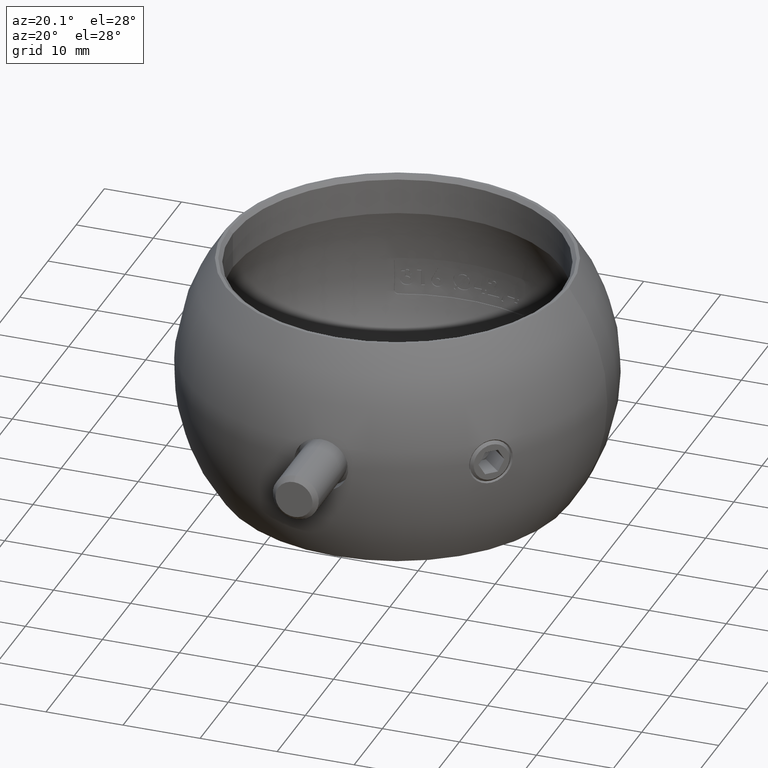
[diagram: clean part render]
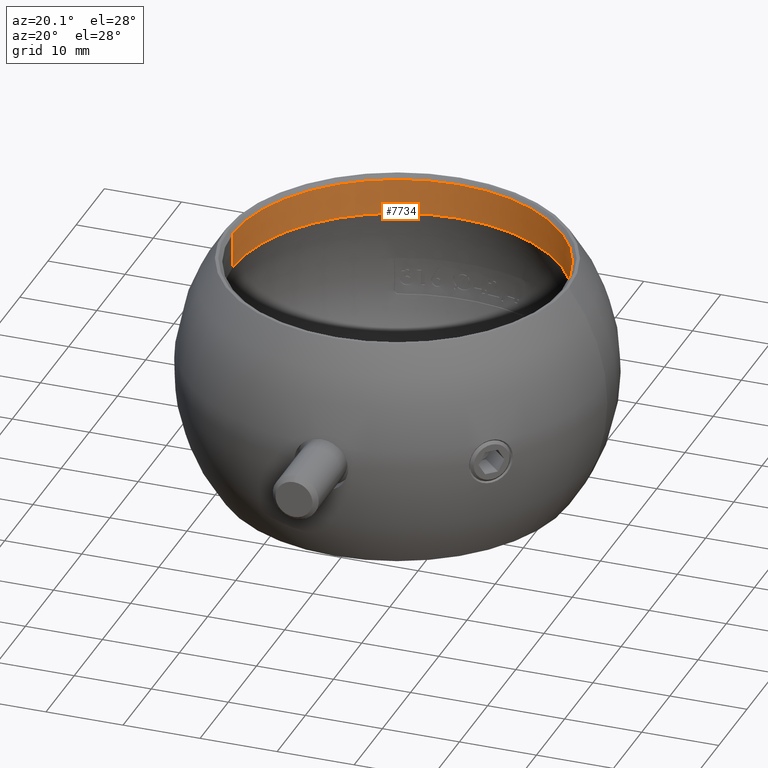
[diagram: same view with one face highlighted and labeled with its STEP entity id]
A machine part, auxiliary view. The second image highlights one B-rep face of the part: STEP entity #7734.
In plain terms, the highlighted cylindrical surface (partial cylindrical patch) has radius 21.35 mm, axis along (0, 0, 1).
Its self-contained STEP definition (entity closure, byte-faithful):
#449 = CYLINDRICAL_SURFACE ( 'NONE', #7459, 21.35000000000000142 ) ;
#1857 = EDGE_CURVE ( 'NONE', #13407, #17173, #16702, .T. ) ;
#2350 = CIRCLE ( 'NONE', #13825, 21.35000000000000142 ) ;
#2648 = CARTESIAN_POINT ( 'NONE',  ( 0.000000000000000000, 0.000000000000000000, 13.99999999999999822 ) ) ;
#3223 = CARTESIAN_POINT ( 'NONE',  ( 21.34999999999999787, 0.000000000000000000, 9.871170143402459018 ) ) ;
#3933 = VERTEX_POINT ( 'NONE', #20761 ) ;
#4229 = ORIENTED_EDGE ( 'NONE', *, *, #16517, .T. ) ;
#4246 = DIRECTION ( 'NONE',  ( 1.000000000000000000, 0.000000000000000000, 0.000000000000000000 ) ) ;
#4278 = ORIENTED_EDGE ( 'NONE', *, *, #1857, .T. ) ;
#5926 = DIRECTION ( 'NONE',  ( -0.000000000000000000, -0.000000000000000000, 1.000000000000000000 ) ) ;
#6528 = LINE ( 'NONE', #11331, #7795 ) ;
#7393 = CARTESIAN_POINT ( 'NONE',  ( 21.35000000000000142, 0.000000000000000000, 13.99999999999999822 ) ) ;
#7459 = AXIS2_PLACEMENT_3D ( 'NONE', #2648, #18973, #7504 ) ;
#7504 = DIRECTION ( 'NONE',  ( 1.000000000000000000, 0.000000000000000000, 0.000000000000000000 ) ) ;
#7734 = ADVANCED_FACE ( 'NONE', ( #11133 ), #449, .F. ) ;
#7795 = VECTOR ( 'NONE', #7911, 1000.000000000000000 ) ;
#7911 = DIRECTION ( 'NONE',  ( -0.000000000000000000, -0.000000000000000000, 1.000000000000000000 ) ) ;
#8225 = EDGE_CURVE ( 'NONE', #3933, #11511, #6528, .T. ) ;
#9295 = CARTESIAN_POINT ( 'NONE',  ( 0.000000000000000000, 0.000000000000000000, 9.871170143402459018 ) ) ;
#9370 = DIRECTION ( 'NONE',  ( -0.000000000000000000, -0.000000000000000000, 1.000000000000000000 ) ) ;
#11133 = FACE_OUTER_BOUND ( 'NONE', #19125, .T. ) ;
#11230 = ORIENTED_EDGE ( 'NONE', *, *, #8225, .F. ) ;
#11331 = CARTESIAN_POINT ( 'NONE',  ( -21.35000000000000142, 2.614620916179599200E-15, 13.99999999999999822 ) ) ;
#11511 = VERTEX_POINT ( 'NONE', #13594 ) ;
#11749 = EDGE_CURVE ( 'NONE', #13407, #3933, #16097, .T. ) ;
#12584 = CARTESIAN_POINT ( 'NONE',  ( 21.35000000000000142, 0.000000000000000000, 14.49999999999999822 ) ) ;
#13101 = AXIS2_PLACEMENT_3D ( 'NONE', #9295, #9370, #20610 ) ;
#13407 = VERTEX_POINT ( 'NONE', #3223 ) ;
#13594 = CARTESIAN_POINT ( 'NONE',  ( -21.35000000000000142, 2.614620916179599200E-15, 14.49999999999999822 ) ) ;
#13825 = AXIS2_PLACEMENT_3D ( 'NONE', #17266, #5926, #4246 ) ;
#15203 = VECTOR ( 'NONE', #18642, 1000.000000000000000 ) ;
#16097 = CIRCLE ( 'NONE', #13101, 21.34999999999999787 ) ;
#16517 = EDGE_CURVE ( 'NONE', #17173, #11511, #2350, .T. ) ;
#16702 = LINE ( 'NONE', #7393, #15203 ) ;
#17173 = VERTEX_POINT ( 'NONE', #12584 ) ;
#17266 = CARTESIAN_POINT ( 'NONE',  ( 0.000000000000000000, 0.000000000000000000, 14.49999999999999822 ) ) ;
#17568 = ORIENTED_EDGE ( 'NONE', *, *, #11749, .F. ) ;
#18642 = DIRECTION ( 'NONE',  ( -0.000000000000000000, -0.000000000000000000, 1.000000000000000000 ) ) ;
#18973 = DIRECTION ( 'NONE',  ( -0.000000000000000000, -0.000000000000000000, 1.000000000000000000 ) ) ;
#19125 = EDGE_LOOP ( 'NONE', ( #11230, #17568, #4278, #4229 ) ) ;
#20610 = DIRECTION ( 'NONE',  ( 1.000000000000000000, 0.000000000000000000, 0.000000000000000000 ) ) ;
#20761 = CARTESIAN_POINT ( 'NONE',  ( -21.34999999999999787, 2.614620916179599594E-15, 9.871170143402459018 ) ) ;